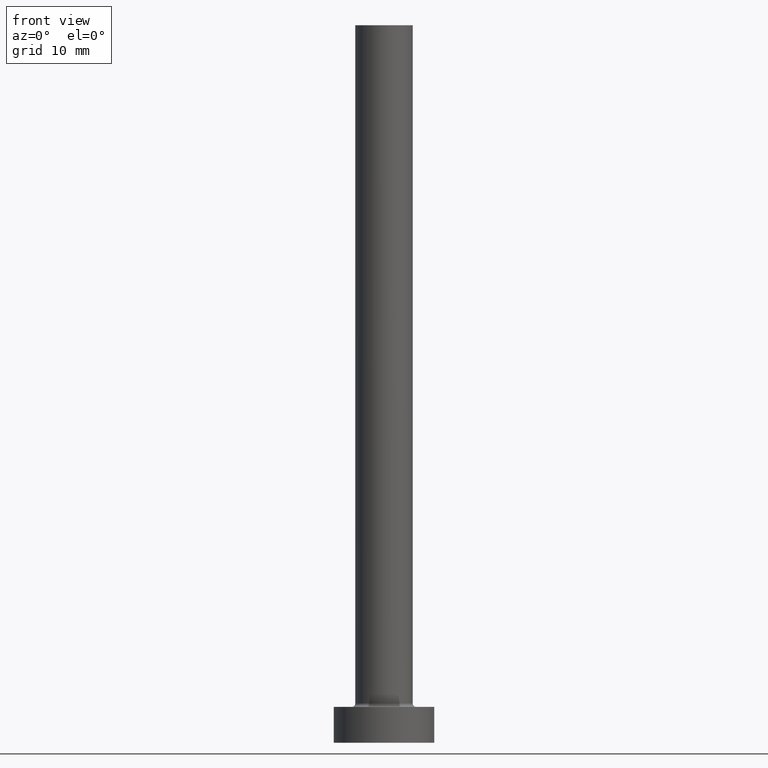
[diagram: clean part render]
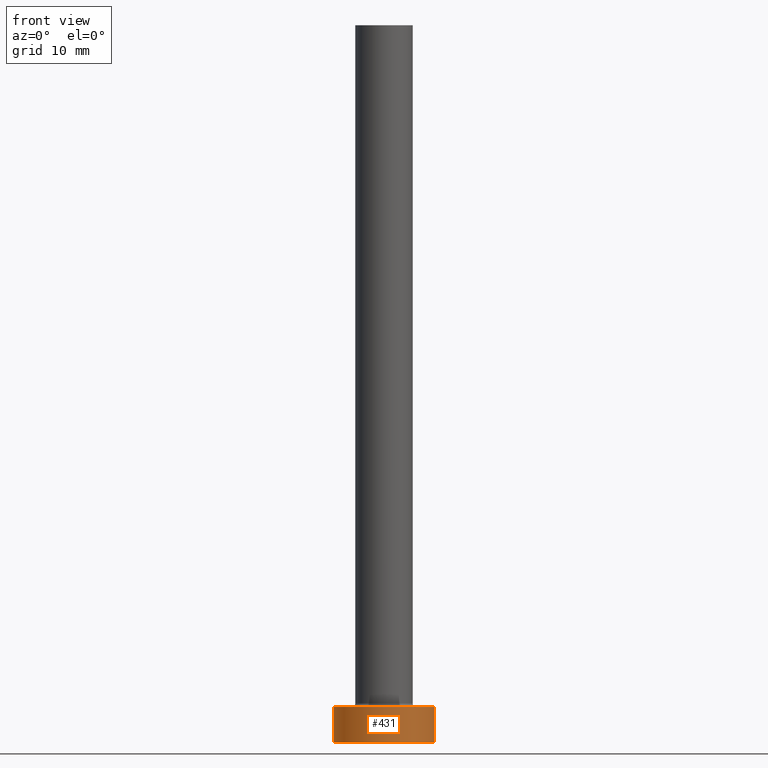
[diagram: same view with one face highlighted and labeled with its STEP entity id]
A machine part, front view. The second image highlights one B-rep face of the part: STEP entity #431.
In plain terms, the highlighted cylindrical surface (partial cylindrical patch) has radius 7 mm, axis along (-0, -0, -1).
Its self-contained STEP definition (entity closure, byte-faithful):
#8 = CARTESIAN_POINT ( 'NONE',  ( 0.000000000000000000, 0.000000000000000000, 5.000000000000000000 ) ) ;
#15 = DIRECTION ( 'NONE',  ( 1.000000000000000000, 0.000000000000000000, 0.000000000000000000 ) ) ;
#21 = DIRECTION ( 'NONE',  ( 0.000000000000000000, 0.000000000000000000, 1.000000000000000000 ) ) ;
#30 = VECTOR ( 'NONE', #63, 1000.000000000000000 ) ;
#51 = EDGE_CURVE ( 'NONE', #165, #70, #215, .T. ) ;
#60 = DIRECTION ( 'NONE',  ( 1.000000000000000000, 0.000000000000000000, 0.000000000000000000 ) ) ;
#63 = DIRECTION ( 'NONE',  ( -0.000000000000000000, -0.000000000000000000, -1.000000000000000000 ) ) ;
#70 = VERTEX_POINT ( 'NONE', #258 ) ;
#73 = ORIENTED_EDGE ( 'NONE', *, *, #160, .T. ) ;
#85 = DIRECTION ( 'NONE',  ( -0.000000000000000000, -0.000000000000000000, -1.000000000000000000 ) ) ;
#128 = LINE ( 'NONE', #361, #363 ) ;
#129 = DIRECTION ( 'NONE',  ( -0.000000000000000000, -0.000000000000000000, -1.000000000000000000 ) ) ;
#160 = EDGE_CURVE ( 'NONE', #420, #372, #128, .T. ) ;
#162 = CARTESIAN_POINT ( 'NONE',  ( -7.000000000000000000, 0.000000000000000000, 0.000000000000000000 ) ) ;
#165 = VERTEX_POINT ( 'NONE', #190 ) ;
#190 = CARTESIAN_POINT ( 'NONE',  ( 7.000000000000000000, 8.572527594031473190E-16, 5.000000000000000000 ) ) ;
#194 = EDGE_LOOP ( 'NONE', ( #340, #381, #73, #242 ) ) ;
#215 = LINE ( 'NONE', #378, #30 ) ;
#220 = EDGE_CURVE ( 'NONE', #372, #70, #243, .T. ) ;
#242 = ORIENTED_EDGE ( 'NONE', *, *, #220, .T. ) ;
#243 = CIRCLE ( 'NONE', #423, 7.000000000000000000 ) ;
#258 = CARTESIAN_POINT ( 'NONE',  ( 7.000000000000000000, 8.572527594031473190E-16, 0.000000000000000000 ) ) ;
#272 = FACE_OUTER_BOUND ( 'NONE', #194, .T. ) ;
#286 = CIRCLE ( 'NONE', #304, 7.000000000000000000 ) ;
#292 = CARTESIAN_POINT ( 'NONE',  ( -7.000000000000000000, 0.000000000000000000, 5.000000000000000000 ) ) ;
#299 = CYLINDRICAL_SURFACE ( 'NONE', #323, 7.000000000000000000 ) ;
#303 = EDGE_CURVE ( 'NONE', #420, #165, #286, .T. ) ;
#304 = AXIS2_PLACEMENT_3D ( 'NONE', #334, #21, #15 ) ;
#323 = AXIS2_PLACEMENT_3D ( 'NONE', #8, #129, #362 ) ;
#334 = CARTESIAN_POINT ( 'NONE',  ( 0.000000000000000000, 0.000000000000000000, 5.000000000000000000 ) ) ;
#340 = ORIENTED_EDGE ( 'NONE', *, *, #51, .F. ) ;
#361 = CARTESIAN_POINT ( 'NONE',  ( -7.000000000000000000, 0.000000000000000000, 5.000000000000000000 ) ) ;
#362 = DIRECTION ( 'NONE',  ( -1.000000000000000000, 0.000000000000000000, 0.000000000000000000 ) ) ;
#363 = VECTOR ( 'NONE', #85, 1000.000000000000000 ) ;
#372 = VERTEX_POINT ( 'NONE', #162 ) ;
#377 = DIRECTION ( 'NONE',  ( 0.000000000000000000, 0.000000000000000000, 1.000000000000000000 ) ) ;
#378 = CARTESIAN_POINT ( 'NONE',  ( 7.000000000000000000, 8.572527594031473190E-16, 5.000000000000000000 ) ) ;
#381 = ORIENTED_EDGE ( 'NONE', *, *, #303, .F. ) ;
#409 = CARTESIAN_POINT ( 'NONE',  ( 0.000000000000000000, 0.000000000000000000, 0.000000000000000000 ) ) ;
#420 = VERTEX_POINT ( 'NONE', #292 ) ;
#423 = AXIS2_PLACEMENT_3D ( 'NONE', #409, #377, #60 ) ;
#431 = ADVANCED_FACE ( 'NONE', ( #272 ), #299, .T. ) ;